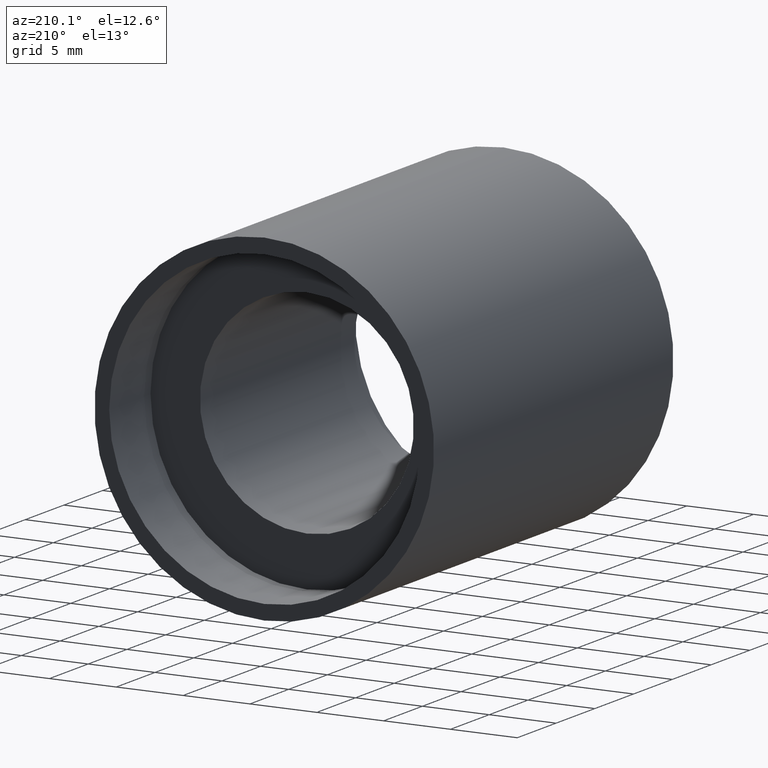
[diagram: clean part render]
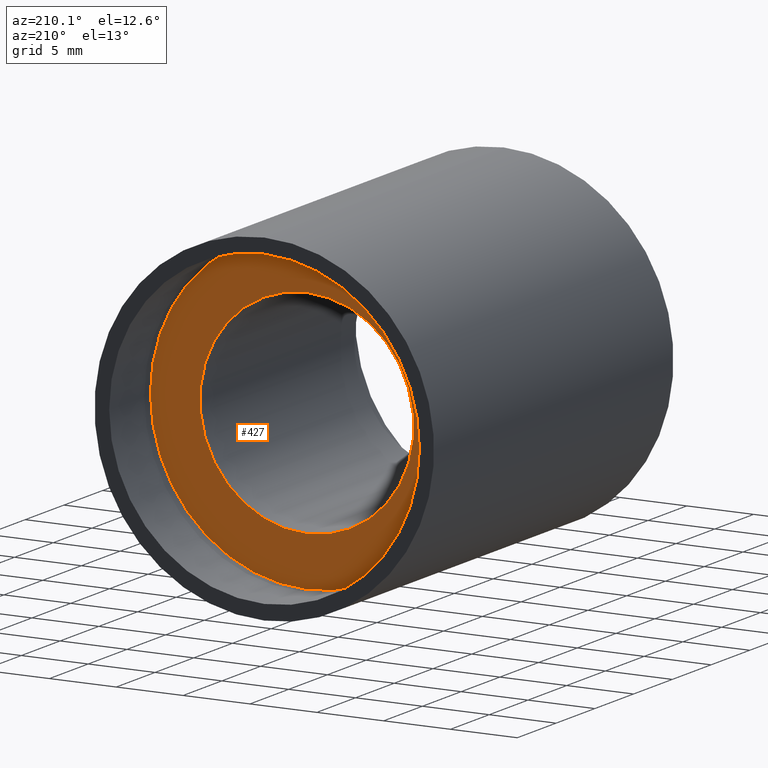
[diagram: same view with one face highlighted and labeled with its STEP entity id]
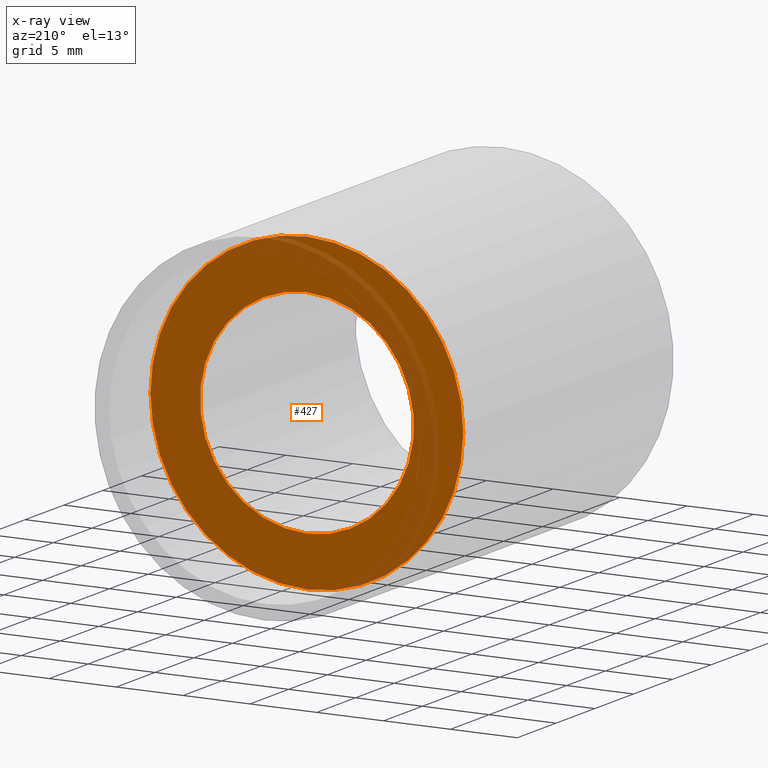
[diagram: x-ray of the same camera — body ghosted, the highlighted face saturated]
A machine part, auxiliary view. The second image highlights one B-rep face of the part: STEP entity #427.
The next image is the same camera in x-ray: the body ghosted, the highlighted face saturated — about 20% of this face is hidden behind the body in this view.
In plain terms, the highlighted planar face has unit normal (0, -1, 0).
Its self-contained STEP definition (entity closure, byte-faithful):
#14 = VERTEX_POINT ( 'NONE', #394 ) ;
#15 = EDGE_CURVE ( 'NONE', #120, #418, #73, .T. ) ;
#20 = CARTESIAN_POINT ( 'NONE',  ( 0.0000000000000000000, 25.39999999999997700, 0.0000000000000000000 ) ) ;
#65 = AXIS2_PLACEMENT_3D ( 'NONE', #605, #371, #268 ) ;
#69 = DIRECTION ( 'NONE',  ( -0.0000000000000000000, 1.000000000000000000, -0.0000000000000000000 ) ) ;
#73 = CIRCLE ( 'NONE', #441, 8.000000000000019500 ) ;
#81 = EDGE_LOOP ( 'NONE', ( #438, #319 ) ) ;
#112 = DIRECTION ( 'NONE',  ( -0.0000000000000000000, 1.000000000000000000, -0.0000000000000000000 ) ) ;
#117 = FACE_OUTER_BOUND ( 'NONE', #81, .T. ) ;
#120 = VERTEX_POINT ( 'NONE', #245 ) ;
#131 = VERTEX_POINT ( 'NONE', #345 ) ;
#133 = EDGE_LOOP ( 'NONE', ( #424, #534 ) ) ;
#137 = DIRECTION ( 'NONE',  ( 0.0000000000000000000, 0.0000000000000000000, 1.000000000000000000 ) ) ;
#209 = DIRECTION ( 'NONE',  ( 0.0000000000000000000, 0.0000000000000000000, 1.000000000000000000 ) ) ;
#219 = EDGE_CURVE ( 'NONE', #418, #120, #570, .T. ) ;
#224 = CARTESIAN_POINT ( 'NONE',  ( 9.797174393178849300E-016, 25.39999999999997700, -8.000000000000019500 ) ) ;
#225 = CIRCLE ( 'NONE', #575, 11.70000000000001500 ) ;
#241 = EDGE_CURVE ( 'NONE', #131, #14, #225, .T. ) ;
#243 = CARTESIAN_POINT ( 'NONE',  ( 0.0000000000000000000, 25.39999999999997700, 0.0000000000000000000 ) ) ;
#245 = CARTESIAN_POINT ( 'NONE',  ( 0.0000000000000000000, 25.39999999999997700, 8.000000000000019500 ) ) ;
#265 = PLANE ( 'NONE',  #65 ) ;
#268 = DIRECTION ( 'NONE',  ( 0.0000000000000000000, -0.0000000000000000000, -1.000000000000000000 ) ) ;
#319 = ORIENTED_EDGE ( 'NONE', *, *, #241, .T. ) ;
#344 = CARTESIAN_POINT ( 'NONE',  ( 0.0000000000000000000, 25.39999999999997700, 0.0000000000000000000 ) ) ;
#345 = CARTESIAN_POINT ( 'NONE',  ( 1.432836755002405300E-015, 25.39999999999997700, -11.70000000000001500 ) ) ;
#369 = AXIS2_PLACEMENT_3D ( 'NONE', #344, #533, #540 ) ;
#371 = DIRECTION ( 'NONE',  ( 0.0000000000000000000, -1.000000000000000000, 0.0000000000000000000 ) ) ;
#383 = CIRCLE ( 'NONE', #369, 11.70000000000001500 ) ;
#394 = CARTESIAN_POINT ( 'NONE',  ( 0.0000000000000000000, 25.39999999999997700, 11.70000000000001500 ) ) ;
#418 = VERTEX_POINT ( 'NONE', #224 ) ;
#424 = ORIENTED_EDGE ( 'NONE', *, *, #15, .F. ) ;
#427 = ADVANCED_FACE ( 'NONE', ( #500, #117 ), #265, .F. ) ;
#438 = ORIENTED_EDGE ( 'NONE', *, *, #609, .T. ) ;
#441 = AXIS2_PLACEMENT_3D ( 'NONE', #243, #584, #137 ) ;
#459 = AXIS2_PLACEMENT_3D ( 'NONE', #502, #112, #209 ) ;
#500 = FACE_BOUND ( 'NONE', #133, .T. ) ;
#502 = CARTESIAN_POINT ( 'NONE',  ( 0.0000000000000000000, 25.39999999999997700, 0.0000000000000000000 ) ) ;
#533 = DIRECTION ( 'NONE',  ( -0.0000000000000000000, 1.000000000000000000, -0.0000000000000000000 ) ) ;
#534 = ORIENTED_EDGE ( 'NONE', *, *, #219, .F. ) ;
#540 = DIRECTION ( 'NONE',  ( 0.0000000000000000000, 0.0000000000000000000, 1.000000000000000000 ) ) ;
#570 = CIRCLE ( 'NONE', #459, 8.000000000000019500 ) ;
#575 = AXIS2_PLACEMENT_3D ( 'NONE', #20, #69, #603 ) ;
#584 = DIRECTION ( 'NONE',  ( -0.0000000000000000000, 1.000000000000000000, -0.0000000000000000000 ) ) ;
#603 = DIRECTION ( 'NONE',  ( 0.0000000000000000000, 0.0000000000000000000, 1.000000000000000000 ) ) ;
#605 = CARTESIAN_POINT ( 'NONE',  ( 8.000000000000019500, 25.39999999999997700, 0.0000000000000000000 ) ) ;
#609 = EDGE_CURVE ( 'NONE', #14, #131, #383, .T. ) ;